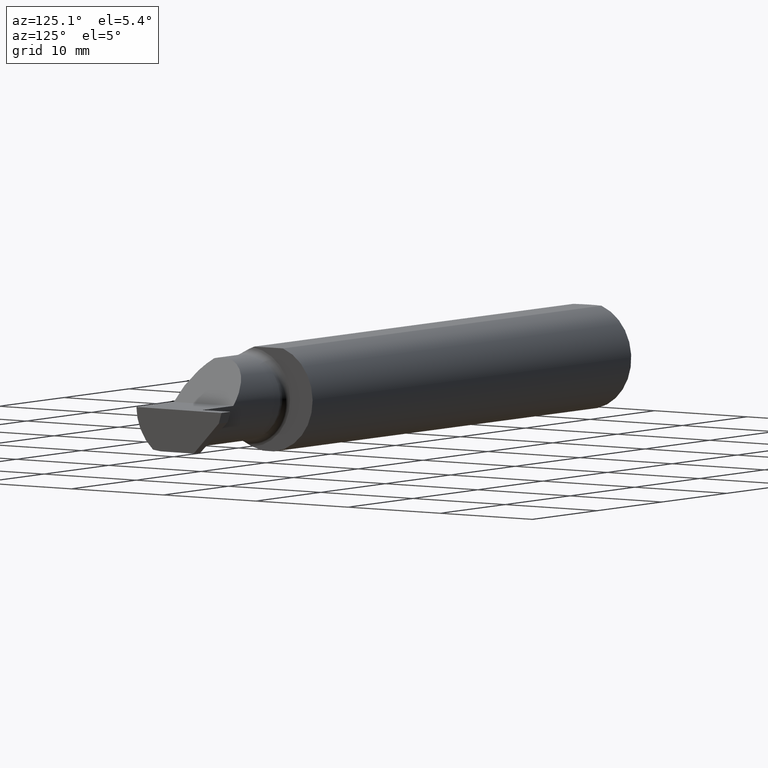
[diagram: clean part render]
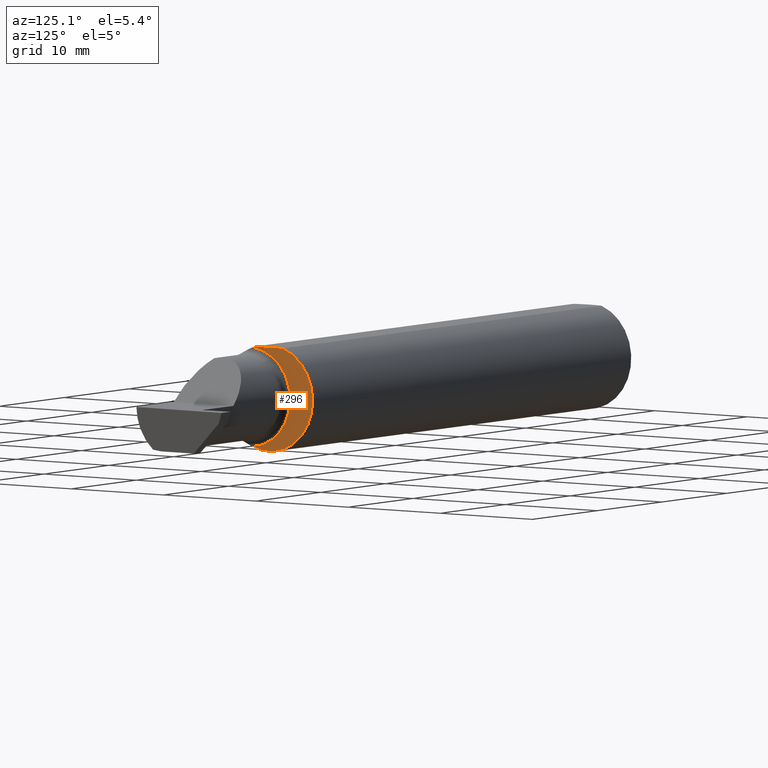
[diagram: same view with one face highlighted and labeled with its STEP entity id]
A machine part, auxiliary view. The second image highlights one B-rep face of the part: STEP entity #296.
In plain terms, the highlighted planar face has unit normal (1, 0, 0).
Its self-contained STEP definition (entity closure, byte-faithful):
#37 = CARTESIAN_POINT ( 'NONE',  ( 1.949999999999999956, -0.06851976604679065053, 0.1743704796142198643 ) ) ;
#64 = AXIS2_PLACEMENT_3D ( 'NONE', #178, #498, #567 ) ;
#178 = CARTESIAN_POINT ( 'NONE',  ( 1.949999999999999956, 0.000000000000000000, 0.000000000000000000 ) ) ;
#231 = CIRCLE ( 'NONE', #64, 0.1873499999999999888 ) ;
#261 = EDGE_CURVE ( 'NONE', #532, #598, #676, .T. ) ;
#279 = DIRECTION ( 'NONE',  ( 0.000000000000000000, 0.000000000000000000, -1.000000000000000000 ) ) ;
#293 = DIRECTION ( 'NONE',  ( 0.000000000000000000, 0.000000000000000000, -1.000000000000000000 ) ) ;
#296 = ADVANCED_FACE ( 'NONE', ( #936 ), #514, .T. ) ;
#310 = VERTEX_POINT ( 'NONE', #597 ) ;
#437 = LINE ( 'NONE', #835, #819 ) ;
#443 = CARTESIAN_POINT ( 'NONE',  ( 1.949999999999999956, 0.2666499999999999981, 0.000000000000000000 ) ) ;
#470 = ORIENTED_EDGE ( 'NONE', *, *, #261, .T. ) ;
#498 = DIRECTION ( 'NONE',  ( 1.000000000000000000, 0.000000000000000000, 0.000000000000000000 ) ) ;
#503 = AXIS2_PLACEMENT_3D ( 'NONE', #698, #682, #293 ) ;
#514 = PLANE ( 'NONE',  #924 ) ;
#532 = VERTEX_POINT ( 'NONE', #895 ) ;
#551 = EDGE_CURVE ( 'NONE', #650, #310, #231, .T. ) ;
#567 = DIRECTION ( 'NONE',  ( 0.000000000000000000, 0.000000000000000000, -1.000000000000000000 ) ) ;
#587 = AXIS2_PLACEMENT_3D ( 'NONE', #1030, #878, #726 ) ;
#597 = CARTESIAN_POINT ( 'NONE',  ( 1.949999999999999956, 0.06039039658754216666, 0.1773499999999999799 ) ) ;
#598 = VERTEX_POINT ( 'NONE', #37 ) ;
#633 = ORIENTED_EDGE ( 'NONE', *, *, #848, .T. ) ;
#650 = VERTEX_POINT ( 'NONE', #863 ) ;
#668 = EDGE_LOOP ( 'NONE', ( #841, #766, #470, #633 ) ) ;
#676 = CIRCLE ( 'NONE', #503, 0.1873499999999999888 ) ;
#682 = DIRECTION ( 'NONE',  ( 1.000000000000000000, 0.000000000000000000, 0.000000000000000000 ) ) ;
#698 = CARTESIAN_POINT ( 'NONE',  ( 1.949999999999999956, 0.000000000000000000, 0.000000000000000000 ) ) ;
#726 = DIRECTION ( 'NONE',  ( 0.000000000000000000, 0.000000000000000000, 1.000000000000000000 ) ) ;
#743 = DIRECTION ( 'NONE',  ( -0.000000000000000000, 1.000000000000000000, 0.000000000000000000 ) ) ;
#766 = ORIENTED_EDGE ( 'NONE', *, *, #928, .F. ) ;
#819 = VECTOR ( 'NONE', #743, 39.37007874015748143 ) ;
#835 = CARTESIAN_POINT ( 'NONE',  ( 1.949999999999999956, -0.1873500000000000165, 0.1773499999999999799 ) ) ;
#841 = ORIENTED_EDGE ( 'NONE', *, *, #551, .T. ) ;
#848 = EDGE_CURVE ( 'NONE', #598, #650, #1040, .T. ) ;
#863 = CARTESIAN_POINT ( 'NONE',  ( 1.949999999999999956, -0.06851976604679065053, -0.1743704796142198643 ) ) ;
#878 = DIRECTION ( 'NONE',  ( -1.000000000000000000, -0.000000000000000000, -0.000000000000000000 ) ) ;
#895 = CARTESIAN_POINT ( 'NONE',  ( 1.949999999999999956, -0.06039039658753699025, 0.1773499999999999799 ) ) ;
#924 = AXIS2_PLACEMENT_3D ( 'NONE', #443, #995, #279 ) ;
#928 = EDGE_CURVE ( 'NONE', #532, #310, #437, .T. ) ;
#936 = FACE_OUTER_BOUND ( 'NONE', #668, .T. ) ;
#995 = DIRECTION ( 'NONE',  ( 1.000000000000000000, 0.000000000000000000, 0.000000000000000000 ) ) ;
#1030 = CARTESIAN_POINT ( 'NONE',  ( 1.949999999999999956, -0.08334999999999996578, 0.000000000000000000 ) ) ;
#1040 = CIRCLE ( 'NONE', #587, 0.1749999999999999889 ) ;